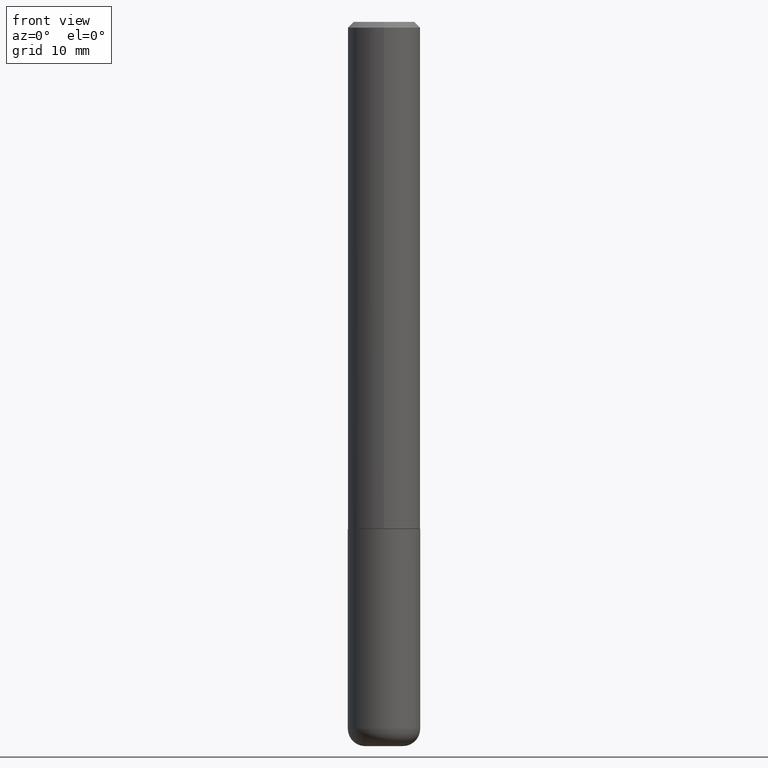
[diagram: clean part render]
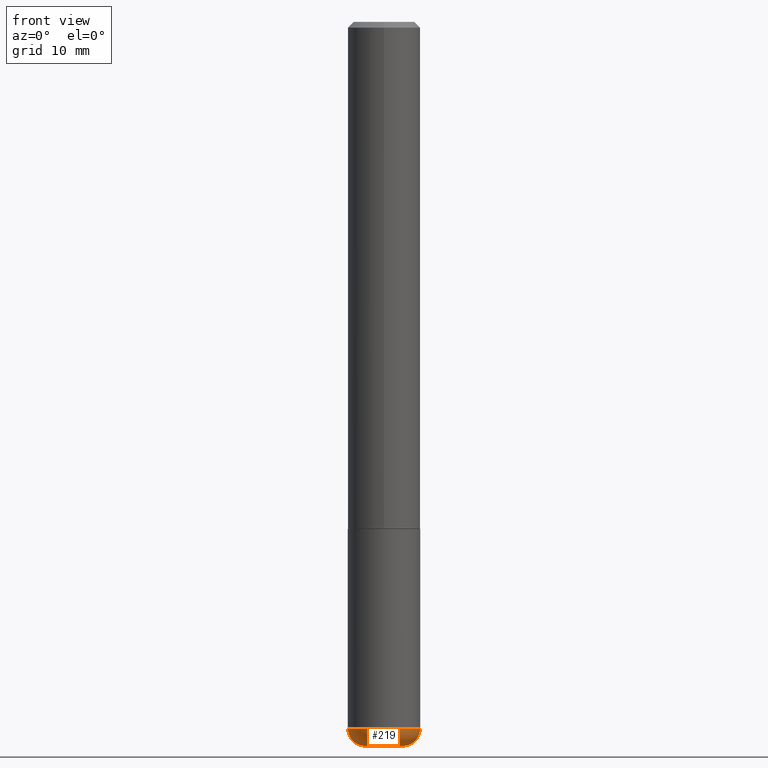
[diagram: same view with one face highlighted and labeled with its STEP entity id]
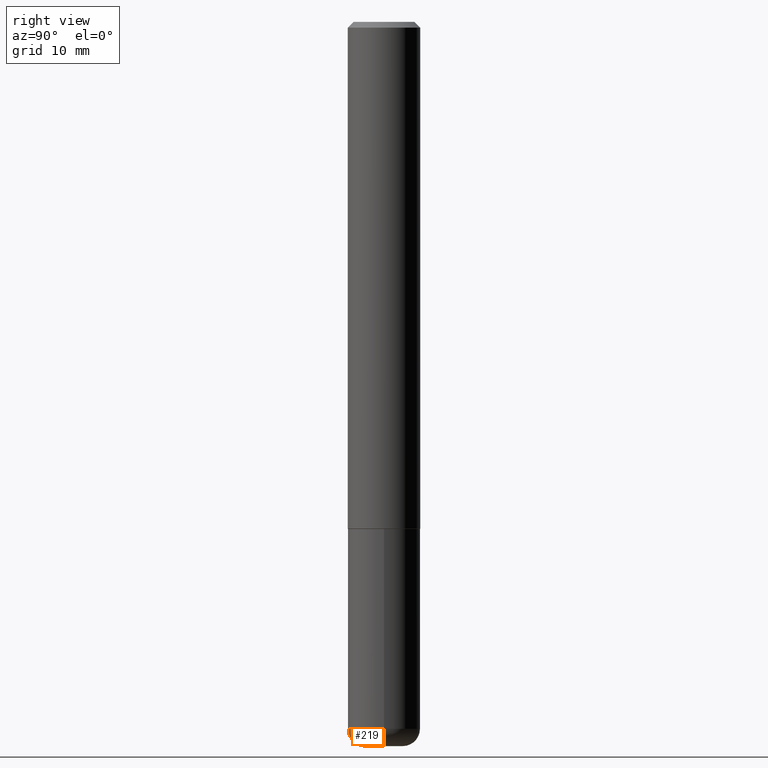
[diagram: same view with one face highlighted and labeled with its STEP entity id]
A machine part, front view. The second image highlights one B-rep face of the part: STEP entity #219.
A second angle (right view) of the same face is appended — the face is thin or edge-on in the first view.
In plain terms, the highlighted toroidal blend (fillet) surface has major radius 1.651 mm and minor (blend) radius 1.524 mm.
Its self-contained STEP definition (entity closure, byte-faithful):
#4 = EDGE_LOOP ( 'NONE', ( #320, #88, #154, #69 ) ) ;
#40 = FACE_OUTER_BOUND ( 'NONE', #4, .T. ) ;
#68 = CARTESIAN_POINT ( 'NONE',  ( 0.1249999999999999861, -9.392084801488058387E-15, -2.440000000000000391 ) ) ;
#69 = ORIENTED_EDGE ( 'NONE', *, *, #170, .F. ) ;
#76 = DIRECTION ( 'NONE',  ( 7.105427357601001859E-15, 1.000000000000000000, -3.491481338843145583E-15 ) ) ;
#85 = AXIS2_PLACEMENT_3D ( 'NONE', #249, #98, #152 ) ;
#86 = DIRECTION ( 'NONE',  ( -6.982962677686266711E-15, -1.000000000000000000, 3.491481338843145583E-15 ) ) ;
#88 = ORIENTED_EDGE ( 'NONE', *, *, #145, .T. ) ;
#89 = VERTEX_POINT ( 'NONE', #409 ) ;
#98 = DIRECTION ( 'NONE',  ( -2.445468806185136597E-29, 3.491481338843145583E-15, 1.000000000000000000 ) ) ;
#115 = VERTEX_POINT ( 'NONE', #259 ) ;
#120 = AXIS2_PLACEMENT_3D ( 'NONE', #359, #136, #190 ) ;
#135 = EDGE_CURVE ( 'NONE', #115, #185, #390, .T. ) ;
#136 = DIRECTION ( 'NONE',  ( -2.445468806185136597E-29, 3.491481338843145583E-15, 1.000000000000000000 ) ) ;
#145 = EDGE_CURVE ( 'NONE', #89, #115, #286, .T. ) ;
#150 = DIRECTION ( 'NONE',  ( -1.000000000000000000, 7.105427357600995548E-15, 0.000000000000000000 ) ) ;
#152 = DIRECTION ( 'NONE',  ( 1.000000000000000000, -6.982962677686262766E-15, 0.000000000000000000 ) ) ;
#154 = ORIENTED_EDGE ( 'NONE', *, *, #135, .T. ) ;
#170 = EDGE_CURVE ( 'NONE', #310, #185, #398, .T. ) ;
#174 = DIRECTION ( 'NONE',  ( -2.445468806185136597E-29, 3.491481338843145583E-15, 1.000000000000000000 ) ) ;
#185 = VERTEX_POINT ( 'NONE', #68 ) ;
#190 = DIRECTION ( 'NONE',  ( 1.000000000000000000, -6.982962677686265133E-15, 4.883557194083112340E-29 ) ) ;
#203 = DIRECTION ( 'NONE',  ( 1.000000000000000000, -6.982962677686272233E-15, 0.000000000000000000 ) ) ;
#219 = ADVANCED_FACE ( 'NONE', ( #40 ), #405, .T. ) ;
#230 = CARTESIAN_POINT ( 'NONE',  ( -0.1249999999999999861, -7.631036047077151393E-15, -2.440000000000000391 ) ) ;
#249 = CARTESIAN_POINT ( 'NONE',  ( 5.966943887091733341E-29, -8.519214466777275048E-15, -2.440000000000000391 ) ) ;
#259 = CARTESIAN_POINT ( 'NONE',  ( 0.06500000000000000222, -9.182595921157471648E-15, -2.500000000000000000 ) ) ;
#286 = CIRCLE ( 'NONE', #337, 0.06500000000000000222 ) ;
#294 = DIRECTION ( 'NONE',  ( 1.000000000000000000, -6.982962677686273810E-15, 0.000000000000000000 ) ) ;
#308 = AXIS2_PLACEMENT_3D ( 'NONE', #356, #76, #150 ) ;
#310 = VERTEX_POINT ( 'NONE', #230 ) ;
#320 = ORIENTED_EDGE ( 'NONE', *, *, #343, .F. ) ;
#330 = CARTESIAN_POINT ( 'NONE',  ( 6.113672015462842613E-29, -8.728703347107864943E-15, -2.500000000000000000 ) ) ;
#337 = AXIS2_PLACEMENT_3D ( 'NONE', #330, #174, #294 ) ;
#343 = EDGE_CURVE ( 'NONE', #89, #310, #378, .T. ) ;
#355 = AXIS2_PLACEMENT_3D ( 'NONE', #367, #86, #203 ) ;
#356 = CARTESIAN_POINT ( 'NONE',  ( -0.06500000000000000222, -8.057361688533210306E-15, -2.440000000000000391 ) ) ;
#359 = CARTESIAN_POINT ( 'NONE',  ( 5.966943887091733341E-29, -8.519214466777275048E-15, -2.440000000000000391 ) ) ;
#367 = CARTESIAN_POINT ( 'NONE',  ( 0.06500000000000000222, -8.973107040826881753E-15, -2.440000000000000391 ) ) ;
#378 = CIRCLE ( 'NONE', #308, 0.05999999999999996309 ) ;
#390 = CIRCLE ( 'NONE', #355, 0.05999999999999996309 ) ;
#398 = CIRCLE ( 'NONE', #85, 0.1250000000000000000 ) ;
#405 = TOROIDAL_SURFACE ( 'NONE', #120, 0.06500000000000000222, 0.05999999999999995615 ) ;
#409 = CARTESIAN_POINT ( 'NONE',  ( -0.06500000000000000222, -7.948943307970475008E-15, -2.500000000000000000 ) ) ;